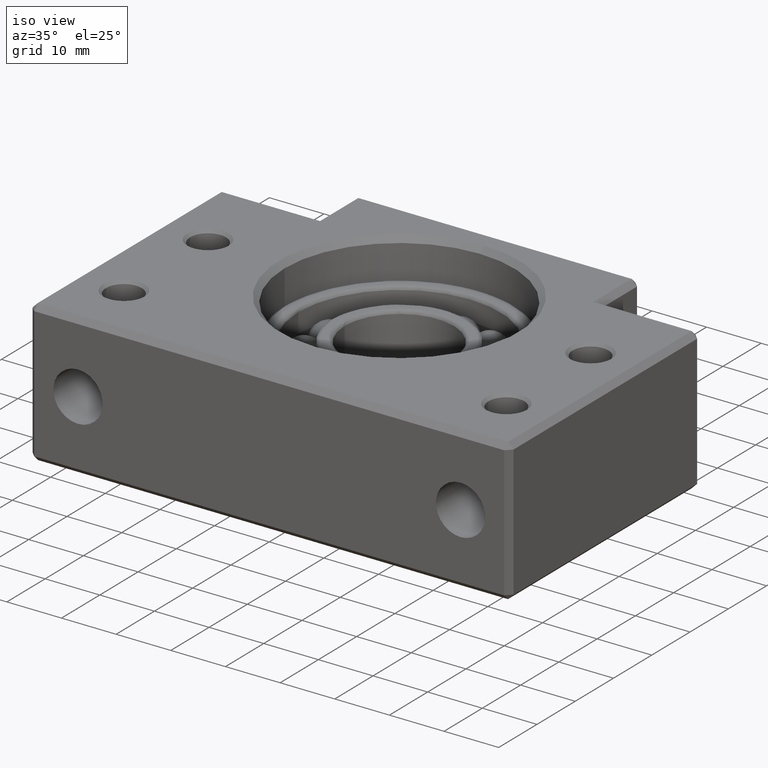
[diagram: clean part render]
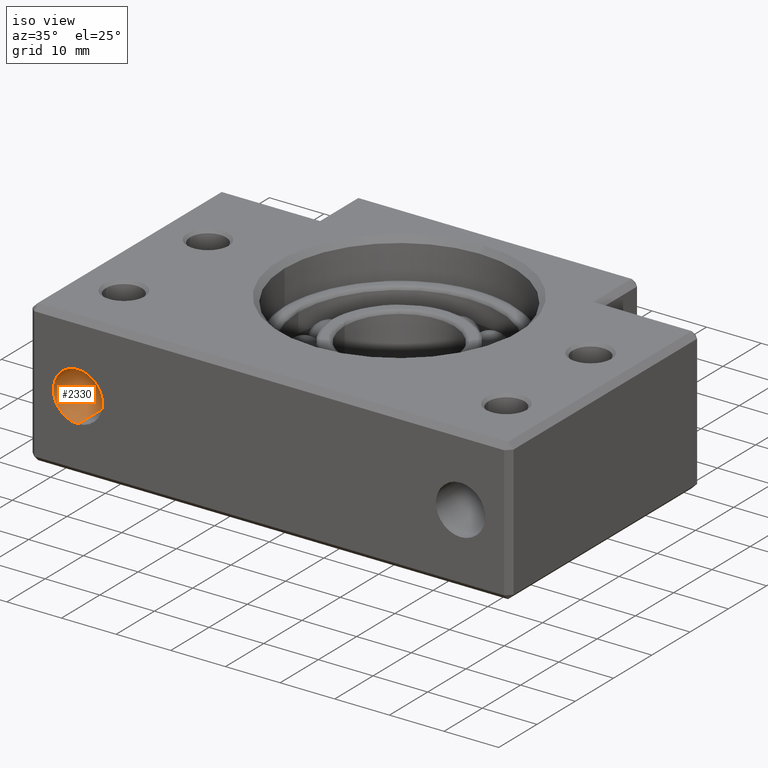
[diagram: same view with one face highlighted and labeled with its STEP entity id]
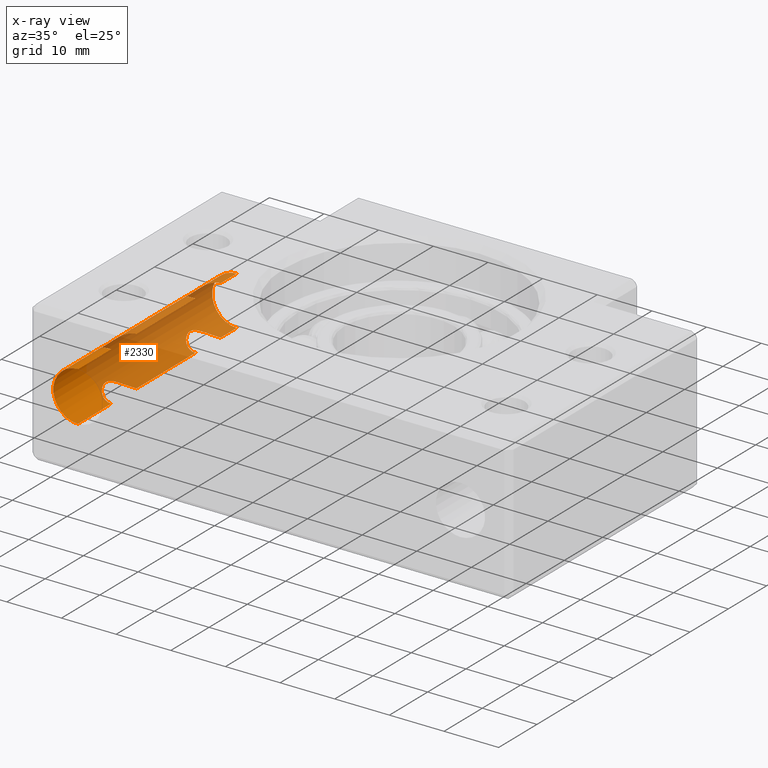
[diagram: x-ray of the same camera — body ghosted, the highlighted face saturated]
A machine part, iso view. The second image highlights one B-rep face of the part: STEP entity #2330.
The next image is the same camera in x-ray: the body ghosted, the highlighted face saturated — about 75% of this face is hidden behind the body in this view.
In plain terms, the highlighted cylindrical surface (edge-blend (fillet) strip) has radius 4.5 mm, axis along (0, 1, 0).
Its self-contained STEP definition (entity closure, byte-faithful):
#228 = CARTESIAN_POINT ( 'NONE',  ( -38.27577444643846900, 11.54401681390951000, 3.086010560818055500 ) ) ;
#245 = LINE ( 'NONE', #2761, #254 ) ;
#254 = VECTOR ( 'NONE', #2791, 1000.000000000000000 ) ;
#388 = LINE ( 'NONE', #2823, #446 ) ;
#446 = VECTOR ( 'NONE', #2877, 1000.000000000000000 ) ;
#577 = CARTESIAN_POINT ( 'NONE',  ( -38.18599052639584800, 11.11225946603055800, 3.178619790276228300 ) ) ;
#606 = CARTESIAN_POINT ( 'NONE',  ( -38.29999999999999700, 12.00000000000000400, 3.059411708155669500 ) ) ;
#639 = CARTESIAN_POINT ( 'NONE',  ( -38.11956722584006500, 10.90296107597282700, 3.245154871050593300 ) ) ;
#673 = VERTEX_POINT ( 'NONE', #1474 ) ;
#753 = EDGE_CURVE ( 'NONE', #4906, #2045, #2423, .T. ) ;
#778 = CARTESIAN_POINT ( 'NONE',  ( -35.00000000000000000, 0.0000000000000000000, -4.499999999999997300 ) ) ;
#809 = EDGE_CURVE ( 'NONE', #1362, #3511, #245, .T. ) ;
#828 = CARTESIAN_POINT ( 'NONE',  ( -38.29999999999999700, 12.00000000000000400, 3.059411708155669500 ) ) ;
#838 = EDGE_CURVE ( 'NONE', #4770, #934, #388, .T. ) ;
#887 = CARTESIAN_POINT ( 'NONE',  ( -38.29999999999999700, 34.00000000000000000, 3.059411708155668700 ) ) ;
#923 = EDGE_CURVE ( 'NONE', #980, #5152, #1680, .T. ) ;
#928 = B_SPLINE_CURVE_WITH_KNOTS ( 'NONE', 3,
 ( #3264, #3256, #3270, #3274, #3276, #3281, #3295, #3301, #3314, #3316, #3321, #3330, #3335, #3337, #3342, #3343, #3347, #3351 ),
 .UNSPECIFIED., .F., .F.,
 ( 4, 2, 2, 2, 2, 2, 2, 2, 4 ),
 ( 0.0000000000000000000, 0.0006732605471445113000, 0.001346521094289022600, 0.002019781641433533900, 0.002693042188578045200, 0.003366302735722556500, 0.004039563282867067800, 0.004712823830011579100, 0.005386084377156090400 ),
 .UNSPECIFIED. ) ;
#934 = VERTEX_POINT ( 'NONE', #3250 ) ;
#944 = EDGE_CURVE ( 'NONE', #2694, #1145, #2015, .T. ) ;
#980 = VERTEX_POINT ( 'NONE', #3268 ) ;
#989 = EDGE_LOOP ( 'NONE', ( #2973, #4243, #2707, #3477, #2133, #1962, #2050, #2842, #1511, #1522, #2137, #1898, #2773, #3940, #4683, #4754 ) ) ;
#994 = CARTESIAN_POINT ( 'NONE',  ( -38.29999999999999700, 34.00000000000000000, -3.059411708155669500 ) ) ;
#1024 = CARTESIAN_POINT ( 'NONE',  ( -35.00000000000000000, 8.700000000000006400, -4.499999999999997300 ) ) ;
#1026 = AXIS2_PLACEMENT_3D ( 'NONE', #1101, #1073, #1115 ) ;
#1073 = DIRECTION ( 'NONE',  ( 0.0000000000000000000, 1.000000000000000000, 0.0000000000000000000 ) ) ;
#1101 = CARTESIAN_POINT ( 'NONE',  ( -35.00000000000000000, 50.00000000000000000, 0.0000000000000000000 ) ) ;
#1109 = B_SPLINE_CURVE_WITH_KNOTS ( 'NONE', 3,
 ( #3253, #3375, #3361, #3367, #3373, #3385, #3388, #3390, #3397, #3403, #3408, #3415, #3420, #3424, #3433, #3439, #3443, #3455 ),
 .UNSPECIFIED., .F., .F.,
 ( 4, 2, 2, 2, 2, 2, 2, 2, 4 ),
 ( 0.01075018968566946100, 0.01142186249360424000, 0.01209353530153901800, 0.01276520810947379800, 0.01343688091740857800, 0.01410855372534335600, 0.01478022653327813600, 0.01545189934121291400, 0.01612357214914769300 ),
 .UNSPECIFIED. ) ;
#1115 = DIRECTION ( 'NONE',  ( 0.0000000000000000000, 0.0000000000000000000, 1.000000000000000000 ) ) ;
#1145 = VERTEX_POINT ( 'NONE', #3529 ) ;
#1205 = B_SPLINE_CURVE_WITH_KNOTS ( 'NONE', 3,
 ( #2745, #5432, #3918, #5017, #3882, #3232, #1216, #5038, #5146, #3852, #4904, #5044, #4867, #639, #577, #228, #3785, #606 ),
 .UNSPECIFIED., .F., .F.,
 ( 4, 2, 2, 2, 2, 2, 2, 2, 4 ),
 ( 0.005380702496452026400, 0.006051888395104205500, 0.006723074293756384600, 0.007394260192408564500, 0.008065446091060742700, 0.008736631989712922600, 0.009407817888365102600, 0.01007900378701728300, 0.01075018968566946200 ),
 .UNSPECIFIED. ) ;
#1216 = CARTESIAN_POINT ( 'NONE',  ( -36.68843043065117400, 9.156711298742404600, 4.175675709795815900 ) ) ;
#1362 = VERTEX_POINT ( 'NONE', #3679 ) ;
#1417 = AXIS2_PLACEMENT_3D ( 'NONE', #3959, #3961, #3965 ) ;
#1474 = CARTESIAN_POINT ( 'NONE',  ( -35.00000000000000000, 41.50000000000000000, -4.499999999999997300 ) ) ;
#1511 = ORIENTED_EDGE ( 'NONE', *, *, #4264, .F. ) ;
#1522 = ORIENTED_EDGE ( 'NONE', *, *, #809, .F. ) ;
#1575 = AXIS2_PLACEMENT_3D ( 'NONE', #3728, #3683, #3811 ) ;
#1630 = LINE ( 'NONE', #3687, #4927 ) ;
#1680 = B_SPLINE_CURVE_WITH_KNOTS ( 'NONE', 3,
 ( #2997, #2941, #2977, #3001, #3002, #3010, #3015, #3016, #3017, #3022, #3032, #3037, #3041, #3046, #3049, #3056, #3061, #3067 ),
 .UNSPECIFIED., .F., .F.,
 ( 4, 2, 2, 2, 2, 2, 2, 2, 4 ),
 ( 0.005380702496452028200, 0.006051888395104207200, 0.006723074293756385400, 0.007394260192408564500, 0.008065446091060742700, 0.008736631989712922600, 0.009407817888365102600, 0.01007900378701728100, 0.01075018968566946100 ),
 .UNSPECIFIED. ) ;
#1886 = CARTESIAN_POINT ( 'NONE',  ( -35.00000000000000000, 0.0000000000000000000, 4.499999999999997300 ) ) ;
#1898 = ORIENTED_EDGE ( 'NONE', *, *, #923, .F. ) ;
#1962 = ORIENTED_EDGE ( 'NONE', *, *, #4635, .T. ) ;
#2015 = B_SPLINE_CURVE_WITH_KNOTS ( 'NONE', 3,
 ( #3082, #2972, #3293, #3084, #3085, #3094, #3099, #3106, #3115, #3126, #3159, #3164, #3174, #3193, #3194, #3201, #3205, #3213 ),
 .UNSPECIFIED., .F., .F.,
 ( 4, 2, 2, 2, 2, 2, 2, 2, 4 ),
 ( 0.005386084377156090400, 0.006059833338629149600, 0.006733582300102209700, 0.007407331261575269800, 0.008081080223048329000, 0.008754829184521388200, 0.009428578145994449100, 0.01010232710746750800, 0.01077607606894056800 ),
 .UNSPECIFIED. ) ;
#2045 = VERTEX_POINT ( 'NONE', #5396 ) ;
#2050 = ORIENTED_EDGE ( 'NONE', *, *, #944, .T. ) ;
#2073 = FACE_OUTER_BOUND ( 'NONE', #989, .T. ) ;
#2088 = CARTESIAN_POINT ( 'NONE',  ( -35.00000000000000000, 50.00000000000000000, 4.499999999999997300 ) ) ;
#2113 = CIRCLE ( 'NONE', #1417, 4.499999999999997300 ) ;
#2133 = ORIENTED_EDGE ( 'NONE', *, *, #4088, .T. ) ;
#2137 = ORIENTED_EDGE ( 'NONE', *, *, #4236, .F. ) ;
#2198 = B_SPLINE_CURVE_WITH_KNOTS ( 'NONE', 3,
 ( #5148, #5123, #5106, #5105, #5100, #5094, #5084, #5514, #5532, #5560, #4843, #4891, #5069, #5063, #5057, #5055, #5053, #5033 ),
 .UNSPECIFIED., .F., .F.,
 ( 4, 2, 2, 2, 2, 2, 2, 2, 4 ),
 ( 0.01075018968566946200, 0.01142186249360424200, 0.01209353530153902200, 0.01276520810947380000, 0.01343688091740858000, 0.01410855372534335900, 0.01478022653327813700, 0.01545189934121291700, 0.01612357214914769700 ),
 .UNSPECIFIED. ) ;
#2294 = B_SPLINE_CURVE_WITH_KNOTS ( 'NONE', 3,
 ( #4828, #4925, #5554, #5550, #5546, #5544, #5540, #5525, #5520, #5513, #4168, #5354, #5416, #5439, #5467, #5511, #5500, #5499 ),
 .UNSPECIFIED., .F., .F.,
 ( 4, 2, 2, 2, 2, 2, 2, 2, 4 ),
 ( 0.0000000000000000000, 0.0006732605471445113000, 0.001346521094289022600, 0.002019781641433533900, 0.002693042188578045200, 0.003366302735722556500, 0.004039563282867067800, 0.004712823830011579100, 0.005386084377156090400 ),
 .UNSPECIFIED. ) ;
#2297 = VECTOR ( 'NONE', #3239, 1000.000000000000000 ) ;
#2330 = ADVANCED_FACE ( 'NONE', ( #2073 ), #5426, .F. ) ;
#2341 = VERTEX_POINT ( 'NONE', #1024 ) ;
#2423 = B_SPLINE_CURVE_WITH_KNOTS ( 'NONE', 3,
 ( #2621, #2611, #2516, #2622, #2630, #2648, #2653, #2656, #2657, #2664, #2666, #2677, #2678, #2680, #2686, #2688, #2696, #2702 ),
 .UNSPECIFIED., .F., .F.,
 ( 4, 2, 2, 2, 2, 2, 2, 2, 4 ),
 ( 0.005386084377156090400, 0.006059833338629151300, 0.006733582300102212300, 0.007407331261575274100, 0.008081080223048334200, 0.008754829184521396900, 0.009428578145994457800, 0.01010232710746751900, 0.01077607606894058000 ),
 .UNSPECIFIED. ) ;
#2516 = CARTESIAN_POINT ( 'NONE',  ( -38.27653159012038500, 12.45043290252506000, -3.085194972733376100 ) ) ;
#2550 = VERTEX_POINT ( 'NONE', #778 ) ;
#2572 = VERTEX_POINT ( 'NONE', #828 ) ;
#2611 = CARTESIAN_POINT ( 'NONE',  ( -38.29999999999990500, 12.22874396368183800, -3.059411708155773500 ) ) ;
#2621 = CARTESIAN_POINT ( 'NONE',  ( -38.29999999999999700, 12.00000000000000400, -3.059411708155669100 ) ) ;
#2622 = CARTESIAN_POINT ( 'NONE',  ( -38.18756366713155600, 12.88203567315428800, -3.177030869982045800 ) ) ;
#2630 = CARTESIAN_POINT ( 'NONE',  ( -38.12125869549920800, 13.09219679766699200, -3.243513723184433800 ) ) ;
#2648 = CARTESIAN_POINT ( 'NONE',  ( -37.95541346299259500, 13.48346922847276000, -3.395315652406603900 ) ) ;
#2653 = CARTESIAN_POINT ( 'NONE',  ( -37.85439844389827600, 13.66904863331135500, -3.481929578402788800 ) ) ;
#2656 = CARTESIAN_POINT ( 'NONE',  ( -37.62209389598549300, 14.01443228169207300, -3.660061156062948100 ) ) ;
#2657 = CARTESIAN_POINT ( 'NONE',  ( -37.49148845125900900, 14.17384498542339200, -3.751237131544260100 ) ) ;
#2664 = CARTESIAN_POINT ( 'NONE',  ( -37.19934666060643000, 14.46900607327863500, -3.929652527426919400 ) ) ;
#2666 = CARTESIAN_POINT ( 'NONE',  ( -37.03702314055716000, 14.60472414505653700, -4.017057106000950600 ) ) ;
#2677 = CARTESIAN_POINT ( 'NONE',  ( -36.69061778254003100, 14.84180623202309900, -4.174688321467551000 ) ) ;
#2678 = CARTESIAN_POINT ( 'NONE',  ( -36.50523765363647800, 14.94473845786861000, -4.245910198423280800 ) ) ;
#2680 = CARTESIAN_POINT ( 'NONE',  ( -36.10607707540255300, 15.11669993461744400, -4.366931108944676500 ) ) ;
#2686 = CARTESIAN_POINT ( 'NONE',  ( -35.89186954020954100, 15.18500136217447300, -4.416248968756418600 ) ) ;
#2688 = CARTESIAN_POINT ( 'NONE',  ( -35.45554404700555300, 15.27599520375788200, -4.482317018243303000 ) ) ;
#2694 = VERTEX_POINT ( 'NONE', #994 ) ;
#2696 = CARTESIAN_POINT ( 'NONE',  ( -35.22859690542208000, 15.30000000000000600, -4.500000000000000900 ) ) ;
#2702 = CARTESIAN_POINT ( 'NONE',  ( -35.00000000000000000, 15.30000000000000100, -4.499999999999997300 ) ) ;
#2707 = ORIENTED_EDGE ( 'NONE', *, *, #4232, .T. ) ;
#2745 = CARTESIAN_POINT ( 'NONE',  ( -35.00000000000000000, 8.700000000000006400, 4.499999999999997300 ) ) ;
#2761 = CARTESIAN_POINT ( 'NONE',  ( -35.00000000000000000, 50.00000000000000000, 4.499999999999997300 ) ) ;
#2773 = ORIENTED_EDGE ( 'NONE', *, *, #5040, .F. ) ;
#2791 = DIRECTION ( 'NONE',  ( 0.0000000000000000000, 1.000000000000000000, 0.0000000000000000000 ) ) ;
#2823 = CARTESIAN_POINT ( 'NONE',  ( -35.00000000000000000, 50.00000000000000000, 4.499999999999997300 ) ) ;
#2842 = ORIENTED_EDGE ( 'NONE', *, *, #4207, .T. ) ;
#2877 = DIRECTION ( 'NONE',  ( 0.0000000000000000000, 1.000000000000000000, 0.0000000000000000000 ) ) ;
#2888 = CARTESIAN_POINT ( 'NONE',  ( -35.00000000000000000, 50.00000000000000000, -4.499999999999997300 ) ) ;
#2897 = DIRECTION ( 'NONE',  ( 0.0000000000000000000, 1.000000000000000000, 0.0000000000000000000 ) ) ;
#2941 = CARTESIAN_POINT ( 'NONE',  ( -35.22812042776349300, 30.70000000000000300, 4.499999999999998200 ) ) ;
#2972 = CARTESIAN_POINT ( 'NONE',  ( -38.29999999999990500, 34.22874396368184300, -3.059411708155774800 ) ) ;
#2973 = ORIENTED_EDGE ( 'NONE', *, *, #4330, .T. ) ;
#2977 = CARTESIAN_POINT ( 'NONE',  ( -35.45094415628969400, 30.72338762447413500, 4.482769971013326000 ) ) ;
#2997 = CARTESIAN_POINT ( 'NONE',  ( -35.00000000000000000, 30.70000000000000600, 4.499999999999997300 ) ) ;
#3001 = CARTESIAN_POINT ( 'NONE',  ( -35.88685207604087400, 30.81361761761662900, 4.417246952608900700 ) ) ;
#3002 = CARTESIAN_POINT ( 'NONE',  ( -36.10108047504369500, 30.88155469313632700, 4.368181941612286700 ) ) ;
#3010 = CARTESIAN_POINT ( 'NONE',  ( -36.49991667380005800, 31.05257242394675600, 4.247780792273379900 ) ) ;
#3015 = CARTESIAN_POINT ( 'NONE',  ( -36.68843043065118100, 31.15671129874239400, 4.175675709795816800 ) ) ;
#3016 = CARTESIAN_POINT ( 'NONE',  ( -37.03890224251942000, 31.39654736872411100, 4.016209979318434300 ) ) ;
#3017 = CARTESIAN_POINT ( 'NONE',  ( -37.19848409359595800, 31.53025006951325800, 3.930126873965509300 ) ) ;
#3022 = CARTESIAN_POINT ( 'NONE',  ( -37.49034725522261600, 31.82487527315355200, 3.751986154514102900 ) ) ;
#3032 = CARTESIAN_POINT ( 'NONE',  ( -37.62288670663599500, 31.98675269007449600, 3.659451634431234000 ) ) ;
#3037 = CARTESIAN_POINT ( 'NONE',  ( -37.85354352237079900, 32.32967405195701400, 3.482586726346497100 ) ) ;
#3041 = CARTESIAN_POINT ( 'NONE',  ( -37.95302118109319900, 32.51175943430467900, 3.397410148576974500 ) ) ;
#3046 = CARTESIAN_POINT ( 'NONE',  ( -38.11956722584007200, 32.90296107597282600, 3.245154871050594200 ) ) ;
#3049 = CARTESIAN_POINT ( 'NONE',  ( -38.18599052639584100, 33.11225946603055800, 3.178619790276231900 ) ) ;
#3056 = CARTESIAN_POINT ( 'NONE',  ( -38.27577444643846900, 33.54401681390950800, 3.086010560818057700 ) ) ;
#3061 = CARTESIAN_POINT ( 'NONE',  ( -38.29999999999991200, 33.77142185747087700, 3.059411708155773500 ) ) ;
#3067 = CARTESIAN_POINT ( 'NONE',  ( -38.29999999999999700, 34.00000000000000000, 3.059411708155668700 ) ) ;
#3082 = CARTESIAN_POINT ( 'NONE',  ( -38.29999999999999700, 34.00000000000000000, -3.059411708155669500 ) ) ;
#3084 = CARTESIAN_POINT ( 'NONE',  ( -38.18756366713155600, 34.88203567315428400, -3.177030869982045800 ) ) ;
#3085 = CARTESIAN_POINT ( 'NONE',  ( -38.12125869549922900, 35.09219679766700000, -3.243513723184432900 ) ) ;
#3094 = CARTESIAN_POINT ( 'NONE',  ( -37.95541346299260300, 35.48346922847276400, -3.395315652406602600 ) ) ;
#3099 = CARTESIAN_POINT ( 'NONE',  ( -37.85439844389827600, 35.66904863331135500, -3.481929578402787900 ) ) ;
#3106 = CARTESIAN_POINT ( 'NONE',  ( -37.62209389598549300, 36.01443228169208100, -3.660061156062946800 ) ) ;
#3115 = CARTESIAN_POINT ( 'NONE',  ( -37.49148845125900900, 36.17384498542339300, -3.751237131544260100 ) ) ;
#3126 = CARTESIAN_POINT ( 'NONE',  ( -37.19934666060642300, 36.46900607327863500, -3.929652527426919400 ) ) ;
#3159 = CARTESIAN_POINT ( 'NONE',  ( -37.03702314055717400, 36.60472414505653700, -4.017057106000950600 ) ) ;
#3164 = CARTESIAN_POINT ( 'NONE',  ( -36.69061778254003100, 36.84180623202310300, -4.174688321467551000 ) ) ;
#3174 = CARTESIAN_POINT ( 'NONE',  ( -36.50523765363648500, 36.94473845786861000, -4.245910198423279900 ) ) ;
#3193 = CARTESIAN_POINT ( 'NONE',  ( -36.10607707540255300, 37.11669993461745100, -4.366931108944676500 ) ) ;
#3194 = CARTESIAN_POINT ( 'NONE',  ( -35.89186954020954100, 37.18500136217448200, -4.416248968756418600 ) ) ;
#3201 = CARTESIAN_POINT ( 'NONE',  ( -35.45554404700555300, 37.27599520375788700, -4.482317018243303000 ) ) ;
#3205 = CARTESIAN_POINT ( 'NONE',  ( -35.22859690542208000, 37.29999999999999700, -4.500000000000000900 ) ) ;
#3213 = CARTESIAN_POINT ( 'NONE',  ( -35.00000000000000000, 37.29999999999999700, -4.499999999999997300 ) ) ;
#3214 = CARTESIAN_POINT ( 'NONE',  ( -35.00000000000000000, 50.00000000000000000, -4.499999999999997300 ) ) ;
#3215 = LINE ( 'NONE', #2088, #4171 ) ;
#3232 = CARTESIAN_POINT ( 'NONE',  ( -36.49991667380006500, 9.052572423946772400, 4.247780792273376300 ) ) ;
#3239 = DIRECTION ( 'NONE',  ( 0.0000000000000000000, 1.000000000000000000, 0.0000000000000000000 ) ) ;
#3250 = CARTESIAN_POINT ( 'NONE',  ( -35.00000000000000000, 8.700000000000006400, 4.499999999999997300 ) ) ;
#3253 = CARTESIAN_POINT ( 'NONE',  ( -38.29999999999999700, 34.00000000000000000, 3.059411708155668700 ) ) ;
#3256 = CARTESIAN_POINT ( 'NONE',  ( -35.22812042776352100, 8.700000000000006400, -4.499999999999997300 ) ) ;
#3264 = CARTESIAN_POINT ( 'NONE',  ( -35.00000000000000000, 8.700000000000006400, -4.499999999999997300 ) ) ;
#3268 = CARTESIAN_POINT ( 'NONE',  ( -35.00000000000000000, 30.70000000000000600, 4.499999999999997300 ) ) ;
#3270 = CARTESIAN_POINT ( 'NONE',  ( -35.45094415628969400, 8.723387624474140600, -4.482769971013324200 ) ) ;
#3274 = CARTESIAN_POINT ( 'NONE',  ( -35.88685207604088800, 8.813617617616644800, -4.417246952608898900 ) ) ;
#3276 = CARTESIAN_POINT ( 'NONE',  ( -36.10108047504370200, 8.881554693136338900, -4.368181941612284000 ) ) ;
#3281 = CARTESIAN_POINT ( 'NONE',  ( -36.49991667380007200, 9.052572423946774200, -4.247780792273377200 ) ) ;
#3293 = CARTESIAN_POINT ( 'NONE',  ( -38.27653159012038500, 34.45043290252504400, -3.085194972733377000 ) ) ;
#3295 = CARTESIAN_POINT ( 'NONE',  ( -36.68843043065118100, 9.156711298742406400, -4.175675709795817700 ) ) ;
#3301 = CARTESIAN_POINT ( 'NONE',  ( -37.03890224251942700, 9.396547368724125000, -4.016209979318435200 ) ) ;
#3310 = DIRECTION ( 'NONE',  ( 0.0000000000000000000, 1.000000000000000000, 0.0000000000000000000 ) ) ;
#3314 = CARTESIAN_POINT ( 'NONE',  ( -37.19848409359595800, 9.530250069513266800, -3.930126873965506600 ) ) ;
#3316 = CARTESIAN_POINT ( 'NONE',  ( -37.49034725522262300, 9.824875273153546500, -3.751986154514099300 ) ) ;
#3321 = CARTESIAN_POINT ( 'NONE',  ( -37.62288670663598800, 9.986752690074498100, -3.659451634431229600 ) ) ;
#3330 = CARTESIAN_POINT ( 'NONE',  ( -37.85354352237079900, 10.32967405195702400, -3.482586726346493100 ) ) ;
#3335 = CARTESIAN_POINT ( 'NONE',  ( -37.95302118109319200, 10.51175943430468800, -3.397410148576971000 ) ) ;
#3337 = CARTESIAN_POINT ( 'NONE',  ( -38.11956722584007200, 10.90296107597282900, -3.245154871050590600 ) ) ;
#3342 = CARTESIAN_POINT ( 'NONE',  ( -38.18599052639584800, 11.11225946603056200, -3.178619790276227000 ) ) ;
#3343 = CARTESIAN_POINT ( 'NONE',  ( -38.27577444643846100, 11.54401681390951900, -3.086010560818054100 ) ) ;
#3347 = CARTESIAN_POINT ( 'NONE',  ( -38.30000000000010400, 11.77142185747368500, -3.059411708155564300 ) ) ;
#3351 = CARTESIAN_POINT ( 'NONE',  ( -38.29999999999999700, 12.00000000000000400, -3.059411708155669100 ) ) ;
#3356 = CIRCLE ( 'NONE', #1575, 4.499999999999997300 ) ;
#3361 = CARTESIAN_POINT ( 'NONE',  ( -38.27653159012039200, 34.45043290252498000, 3.085194972733364500 ) ) ;
#3367 = CARTESIAN_POINT ( 'NONE',  ( -38.18756366713157700, 34.88203567315425600, 3.177030869982036400 ) ) ;
#3373 = CARTESIAN_POINT ( 'NONE',  ( -38.12125869549922900, 35.09219679766695100, 3.243513723184420900 ) ) ;
#3375 = CARTESIAN_POINT ( 'NONE',  ( -38.30000000000009700, 34.22874396367902200, 3.059411708155563800 ) ) ;
#3385 = CARTESIAN_POINT ( 'NONE',  ( -37.95541346299262400, 35.48346922847272100, 3.395315652406583100 ) ) ;
#3388 = CARTESIAN_POINT ( 'NONE',  ( -37.85439844389829000, 35.66904863331134100, 3.481929578402778600 ) ) ;
#3390 = CARTESIAN_POINT ( 'NONE',  ( -37.62209389598551500, 36.01443228169201700, 3.660061156062918800 ) ) ;
#3397 = CARTESIAN_POINT ( 'NONE',  ( -37.49148845125904500, 36.17384498542335100, 3.751237131544232600 ) ) ;
#3403 = CARTESIAN_POINT ( 'NONE',  ( -37.19934666060643700, 36.46900607327862800, 3.929652527426914100 ) ) ;
#3408 = CARTESIAN_POINT ( 'NONE',  ( -37.03702314055722400, 36.60472414505649400, 4.017057106000924800 ) ) ;
#3415 = CARTESIAN_POINT ( 'NONE',  ( -36.69061778254011600, 36.84180623202304600, 4.174688321467514600 ) ) ;
#3420 = CARTESIAN_POINT ( 'NONE',  ( -36.50523765363656300, 36.94473845786856700, 4.245910198423253200 ) ) ;
#3424 = CARTESIAN_POINT ( 'NONE',  ( -36.10607707540255300, 37.11669993461746500, 4.366931108944682700 ) ) ;
#3433 = CARTESIAN_POINT ( 'NONE',  ( -35.89186954020961200, 37.18500136217446100, 4.416248968756406200 ) ) ;
#3439 = CARTESIAN_POINT ( 'NONE',  ( -35.45554404700561700, 37.27599520375787300, 4.482317018243295900 ) ) ;
#3443 = CARTESIAN_POINT ( 'NONE',  ( -35.22797535139150000, 37.30000000000000400, 4.499999999999998200 ) ) ;
#3455 = CARTESIAN_POINT ( 'NONE',  ( -35.00000000000000000, 37.29999999999999700, 4.499999999999997300 ) ) ;
#3467 = LINE ( 'NONE', #3214, #2297 ) ;
#3477 = ORIENTED_EDGE ( 'NONE', *, *, #753, .T. ) ;
#3511 = VERTEX_POINT ( 'NONE', #3804 ) ;
#3529 = CARTESIAN_POINT ( 'NONE',  ( -35.00000000000000000, 37.29999999999999700, -4.499999999999997300 ) ) ;
#3639 = VERTEX_POINT ( 'NONE', #4810 ) ;
#3679 = CARTESIAN_POINT ( 'NONE',  ( -35.00000000000000000, 37.29999999999999700, 4.499999999999997300 ) ) ;
#3683 = DIRECTION ( 'NONE',  ( -0.0000000000000000000, -1.000000000000000000, -0.0000000000000000000 ) ) ;
#3687 = CARTESIAN_POINT ( 'NONE',  ( -35.00000000000000000, 50.00000000000000000, -4.499999999999997300 ) ) ;
#3728 = CARTESIAN_POINT ( 'NONE',  ( -35.00000000000000000, 41.50000000000000000, 0.0000000000000000000 ) ) ;
#3735 = CARTESIAN_POINT ( 'NONE',  ( -38.29999999999999700, 12.00000000000000400, -3.059411708155669100 ) ) ;
#3785 = CARTESIAN_POINT ( 'NONE',  ( -38.29999999999990500, 11.77142185747088400, 3.059411708155773900 ) ) ;
#3804 = CARTESIAN_POINT ( 'NONE',  ( -35.00000000000000000, 41.50000000000000000, 4.499999999999997300 ) ) ;
#3811 = DIRECTION ( 'NONE',  ( 0.0000000000000000000, 0.0000000000000000000, 1.000000000000000000 ) ) ;
#3852 = CARTESIAN_POINT ( 'NONE',  ( -37.49034725522262300, 9.824875273153546500, 3.751986154514099800 ) ) ;
#3882 = CARTESIAN_POINT ( 'NONE',  ( -36.10108047504369500, 8.881554693136335400, 4.368181941612282200 ) ) ;
#3918 = CARTESIAN_POINT ( 'NONE',  ( -35.45094415628969400, 8.723387624474140600, 4.482769971013326000 ) ) ;
#3940 = ORIENTED_EDGE ( 'NONE', *, *, #4538, .F. ) ;
#3959 = CARTESIAN_POINT ( 'NONE',  ( -35.00000000000000000, 0.0000000000000000000, 0.0000000000000000000 ) ) ;
#3961 = DIRECTION ( 'NONE',  ( -0.0000000000000000000, -1.000000000000000000, -0.0000000000000000000 ) ) ;
#3965 = DIRECTION ( 'NONE',  ( 0.0000000000000000000, 0.0000000000000000000, 1.000000000000000000 ) ) ;
#4088 = EDGE_CURVE ( 'NONE', #2045, #3639, #4577, .T. ) ;
#4112 = CARTESIAN_POINT ( 'NONE',  ( -35.00000000000000000, 15.30000000000000100, 4.499999999999997300 ) ) ;
#4168 = CARTESIAN_POINT ( 'NONE',  ( -37.62288670663598800, 31.98675269007449600, -3.659451634431228700 ) ) ;
#4171 = VECTOR ( 'NONE', #4656, 1000.000000000000000 ) ;
#4207 = EDGE_CURVE ( 'NONE', #1145, #673, #3467, .T. ) ;
#4232 = EDGE_CURVE ( 'NONE', #2341, #4906, #928, .T. ) ;
#4236 = EDGE_CURVE ( 'NONE', #5152, #1362, #1109, .T. ) ;
#4243 = ORIENTED_EDGE ( 'NONE', *, *, #4777, .T. ) ;
#4264 = EDGE_CURVE ( 'NONE', #3511, #673, #3356, .T. ) ;
#4330 = EDGE_CURVE ( 'NONE', #4770, #2550, #2113, .T. ) ;
#4538 = EDGE_CURVE ( 'NONE', #2572, #5241, #2198, .T. ) ;
#4577 = LINE ( 'NONE', #2888, #5521 ) ;
#4635 = EDGE_CURVE ( 'NONE', #3639, #2694, #2294, .T. ) ;
#4656 = DIRECTION ( 'NONE',  ( 0.0000000000000000000, 1.000000000000000000, 0.0000000000000000000 ) ) ;
#4683 = ORIENTED_EDGE ( 'NONE', *, *, #4954, .F. ) ;
#4754 = ORIENTED_EDGE ( 'NONE', *, *, #838, .F. ) ;
#4770 = VERTEX_POINT ( 'NONE', #1886 ) ;
#4777 = EDGE_CURVE ( 'NONE', #2550, #2341, #1630, .T. ) ;
#4810 = CARTESIAN_POINT ( 'NONE',  ( -35.00000000000000000, 30.70000000000000600, -4.499999999999997300 ) ) ;
#4828 = CARTESIAN_POINT ( 'NONE',  ( -35.00000000000000000, 30.70000000000000600, -4.499999999999997300 ) ) ;
#4843 = CARTESIAN_POINT ( 'NONE',  ( -37.03702314055721700, 14.60472414505649800, 4.017057106000924800 ) ) ;
#4867 = CARTESIAN_POINT ( 'NONE',  ( -37.95302118109319900, 10.51175943430468400, 3.397410148576972800 ) ) ;
#4891 = CARTESIAN_POINT ( 'NONE',  ( -36.69061778254010200, 14.84180623202304400, 4.174688321467512800 ) ) ;
#4904 = CARTESIAN_POINT ( 'NONE',  ( -37.62288670663599500, 9.986752690074494500, 3.659451634431232700 ) ) ;
#4906 = VERTEX_POINT ( 'NONE', #3735 ) ;
#4925 = CARTESIAN_POINT ( 'NONE',  ( -35.22812042776352100, 30.69999999999999900, -4.499999999999997300 ) ) ;
#4927 = VECTOR ( 'NONE', #3310, 1000.000000000000000 ) ;
#4954 = EDGE_CURVE ( 'NONE', #934, #2572, #1205, .T. ) ;
#5017 = CARTESIAN_POINT ( 'NONE',  ( -35.88685207604087400, 8.813617617616639400, 4.417246952608899800 ) ) ;
#5033 = CARTESIAN_POINT ( 'NONE',  ( -35.00000000000000000, 15.30000000000000100, 4.499999999999997300 ) ) ;
#5038 = CARTESIAN_POINT ( 'NONE',  ( -37.03890224251941300, 9.396547368724121400, 4.016209979318432500 ) ) ;
#5040 = EDGE_CURVE ( 'NONE', #5241, #980, #3215, .T. ) ;
#5044 = CARTESIAN_POINT ( 'NONE',  ( -37.85354352237079900, 10.32967405195701900, 3.482586726346496200 ) ) ;
#5053 = CARTESIAN_POINT ( 'NONE',  ( -35.22797535139150000, 15.30000000000000200, 4.499999999999998200 ) ) ;
#5055 = CARTESIAN_POINT ( 'NONE',  ( -35.45554404700561700, 15.27599520375787300, 4.482317018243295900 ) ) ;
#5057 = CARTESIAN_POINT ( 'NONE',  ( -35.89186954020961200, 15.18500136217445700, 4.416248968756406200 ) ) ;
#5063 = CARTESIAN_POINT ( 'NONE',  ( -36.10607707540255300, 15.11669993461744500, 4.366931108944680100 ) ) ;
#5069 = CARTESIAN_POINT ( 'NONE',  ( -36.50523765363655600, 14.94473845786856900, 4.245910198423251500 ) ) ;
#5084 = CARTESIAN_POINT ( 'NONE',  ( -37.85439844389829000, 13.66904863331134300, 3.481929578402782200 ) ) ;
#5094 = CARTESIAN_POINT ( 'NONE',  ( -37.95541346299262400, 13.48346922847271200, 3.395315652406584400 ) ) ;
#5100 = CARTESIAN_POINT ( 'NONE',  ( -38.12125869549922900, 13.09219679766695600, 3.243513723184420400 ) ) ;
#5105 = CARTESIAN_POINT ( 'NONE',  ( -38.18756366713157700, 12.88203567315426000, 3.177030869982037300 ) ) ;
#5106 = CARTESIAN_POINT ( 'NONE',  ( -38.27653159012039200, 12.45043290252498600, 3.085194972733364500 ) ) ;
#5123 = CARTESIAN_POINT ( 'NONE',  ( -38.30000000000009700, 12.22874396367903000, 3.059411708155565200 ) ) ;
#5146 = CARTESIAN_POINT ( 'NONE',  ( -37.19848409359595800, 9.530250069513266800, 3.930126873965506600 ) ) ;
#5148 = CARTESIAN_POINT ( 'NONE',  ( -38.29999999999999700, 12.00000000000000400, 3.059411708155669500 ) ) ;
#5152 = VERTEX_POINT ( 'NONE', #887 ) ;
#5241 = VERTEX_POINT ( 'NONE', #4112 ) ;
#5354 = CARTESIAN_POINT ( 'NONE',  ( -37.85354352237079900, 32.32967405195702100, -3.482586726346493100 ) ) ;
#5396 = CARTESIAN_POINT ( 'NONE',  ( -35.00000000000000000, 15.30000000000000100, -4.499999999999997300 ) ) ;
#5416 = CARTESIAN_POINT ( 'NONE',  ( -37.95302118109319200, 32.51175943430468600, -3.397410148576972300 ) ) ;
#5426 = CYLINDRICAL_SURFACE ( 'NONE', #1026, 4.499999999999997300 ) ;
#5432 = CARTESIAN_POINT ( 'NONE',  ( -35.22812042776349300, 8.700000000000006400, 4.499999999999998200 ) ) ;
#5439 = CARTESIAN_POINT ( 'NONE',  ( -38.11956722584006500, 32.90296107597281900, -3.245154871050592400 ) ) ;
#5467 = CARTESIAN_POINT ( 'NONE',  ( -38.18599052639584800, 33.11225946603055800, -3.178619790276226100 ) ) ;
#5499 = CARTESIAN_POINT ( 'NONE',  ( -38.29999999999999700, 34.00000000000000000, -3.059411708155669500 ) ) ;
#5500 = CARTESIAN_POINT ( 'NONE',  ( -38.30000000000010400, 33.77142185747370500, -3.059411708155564700 ) ) ;
#5511 = CARTESIAN_POINT ( 'NONE',  ( -38.27577444643846100, 33.54401681390951500, -3.086010560818054100 ) ) ;
#5513 = CARTESIAN_POINT ( 'NONE',  ( -37.49034725522262300, 31.82487527315355200, -3.751986154514097100 ) ) ;
#5514 = CARTESIAN_POINT ( 'NONE',  ( -37.62209389598551500, 14.01443228169202400, 3.660061156062922400 ) ) ;
#5520 = CARTESIAN_POINT ( 'NONE',  ( -37.19848409359595800, 31.53025006951326500, -3.930126873965505800 ) ) ;
#5521 = VECTOR ( 'NONE', #2897, 1000.000000000000000 ) ;
#5525 = CARTESIAN_POINT ( 'NONE',  ( -37.03890224251944100, 31.39654736872411800, -4.016209979318432500 ) ) ;
#5532 = CARTESIAN_POINT ( 'NONE',  ( -37.49148845125904500, 14.17384498542334400, 3.751237131544234300 ) ) ;
#5540 = CARTESIAN_POINT ( 'NONE',  ( -36.68843043065118800, 31.15671129874240500, -4.175675709795815900 ) ) ;
#5544 = CARTESIAN_POINT ( 'NONE',  ( -36.49991667380007200, 31.05257242394677100, -4.247780792273378100 ) ) ;
#5546 = CARTESIAN_POINT ( 'NONE',  ( -36.10108047504370200, 30.88155469313633400, -4.368181941612284000 ) ) ;
#5550 = CARTESIAN_POINT ( 'NONE',  ( -35.88685207604088800, 30.81361761761663600, -4.417246952608898900 ) ) ;
#5554 = CARTESIAN_POINT ( 'NONE',  ( -35.45094415628969400, 30.72338762447414200, -4.482769971013324200 ) ) ;
#5560 = CARTESIAN_POINT ( 'NONE',  ( -37.19934666060643000, 14.46900607327862600, 3.929652527426915000 ) ) ;